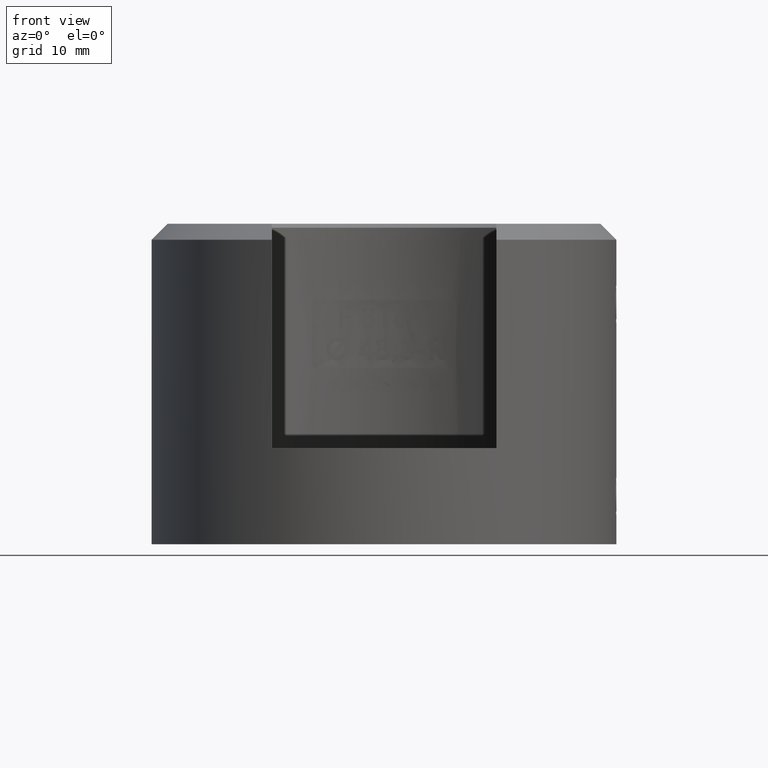
[diagram: clean part render]
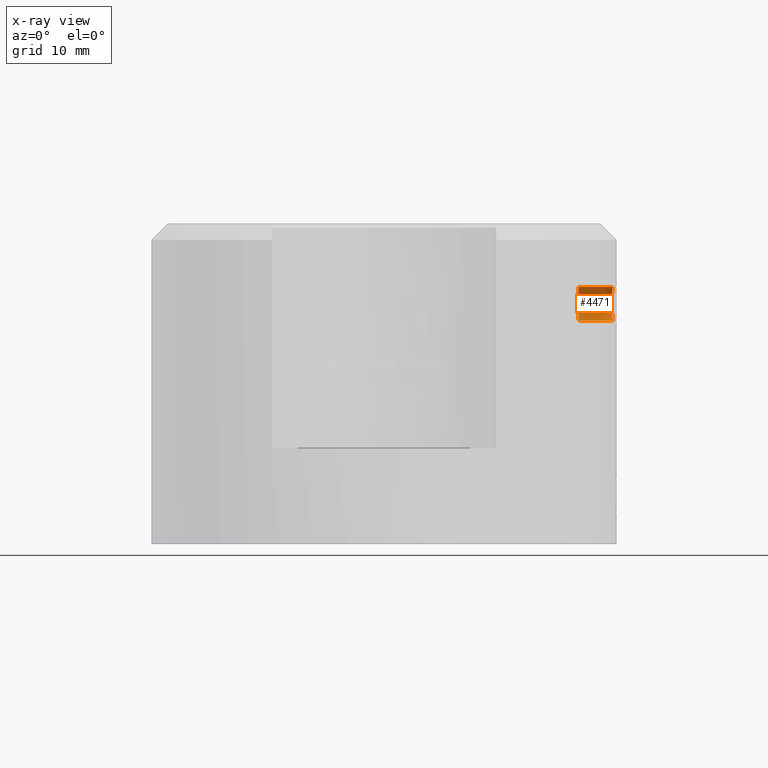
[diagram: x-ray — body ghosted, one internal face saturated and labeled with its STEP entity id]
A machine part, front view, then the same camera in x-ray: the body is ghosted and one INTERNAL B-rep face — a face not visible from any outside direction — is saturated and labeled: STEP entity #4471.
In plain terms, the highlighted cylindrical surface (edge-blend (fillet) strip) has radius 2.1 mm, axis along (1, 0, 0).
Its self-contained STEP definition (entity closure, byte-faithful):
#25 = CARTESIAN_POINT ( 'NONE',  ( 28.43414496619144700, 2.001236919368245500, 10.63736717707338300 ) ) ;
#217 = CARTESIAN_POINT ( 'NONE',  ( 28.42943247418527300, 2.047108871602672400, 10.47294634226725800 ) ) ;
#354 = ORIENTED_EDGE ( 'NONE', *, *, #19311, .T. ) ;
#499 = CARTESIAN_POINT ( 'NONE',  ( 28.53550031830661400, 0.001140642805956739400, 12.09999979347133700 ) ) ;
#808 = CARTESIAN_POINT ( 'NONE',  ( 28.52720066976928200, 0.5739007137693182800, 12.02035187683672700 ) ) ;
#897 = CARTESIAN_POINT ( 'NONE',  ( 28.49944313422719900, 1.194284154135411400, 11.72735281140591600 ) ) ;
#1233 = CARTESIAN_POINT ( 'NONE',  ( 28.49535257245132400, 1.260207332527764100, 8.320067902431606700 ) ) ;
#1321 = CARTESIAN_POINT ( 'NONE',  ( 28.50146884003137900, 1.160278937062588100, 8.249625319063412100 ) ) ;
#1370 = DIRECTION ( 'NONE',  ( 1.000000000000000000, -0.0000000000000000000, -0.0000000000000000000 ) ) ;
#1414 = CARTESIAN_POINT ( 'NONE',  ( 28.47248779039875200, 1.578492023958966800, 8.614843399234125300 ) ) ;
#1526 = CARTESIAN_POINT ( 'NONE',  ( 28.52826814566139600, 0.5388665273112101000, 7.969150172052804000 ) ) ;
#1731 = CARTESIAN_POINT ( 'NONE',  ( 24.26651345816603800, 1.280382146811774900, 8.329834235024446100 ) ) ;
#1928 = CARTESIAN_POINT ( 'NONE',  ( 24.21818700500508500, 1.993039231889467200, 10.67582228837188700 ) ) ;
#1999 = CARTESIAN_POINT ( 'NONE',  ( 28.43218725181276000, 2.020435237145805600, 9.426391447016143800 ) ) ;
#2004 = B_SPLINE_CURVE_WITH_KNOTS ( 'NONE', 3,
 ( #19633, #21774, #26276, #26161, #28408, #15053, #15254, #1731, #6409, #12936, #6306, #28500, #21862, #26353, #13042, #28600, #1928, #2099, #15609, #26712, #13211, #26624, #4369, #2299, #17855, #20092, #11045, #17656, #4542, #24382 ),
 .UNSPECIFIED., .F., .F.,
 ( 4, 2, 2, 2, 2, 2, 2, 2, 2, 2, 2, 2, 2, 2, 4 ),
 ( 4.053914245800869100E-019, 0.0004105386939031072300, 0.0008210773878062141400, 0.001231616081709321000, 0.001642154775612427900, 0.002463232163418641600, 0.003284309551224855300, 0.003694848245127964900, 0.004105386939031075100, 0.004515925632934183000, 0.004926464326837291800, 0.005337003020740401500, 0.005747541714643510300, 0.006158080408546619900, 0.006568619102449728800 ),
 .UNSPECIFIED. ) ;
#2099 = CARTESIAN_POINT ( 'NONE',  ( 24.22661843709207800, 1.887788730975420200, 10.93015850934826200 ) ) ;
#2188 = ORIENTED_EDGE ( 'NONE', *, *, #15767, .F. ) ;
#2288 = CARTESIAN_POINT ( 'NONE',  ( 28.43955553036485300, 1.947112601253244900, 10.78665908532640200 ) ) ;
#2299 = CARTESIAN_POINT ( 'NONE',  ( 24.27741204111290700, 1.053670867048688100, 11.82167147004923500 ) ) ;
#2324 = EDGE_CURVE ( 'NONE', #5622, #17661, #14951, .T. ) ;
#2476 = CARTESIAN_POINT ( 'NONE',  ( 28.43890027084833200, 1.953742816080394700, 10.77004480850141600 ) ) ;
#2766 = CARTESIAN_POINT ( 'NONE',  ( 28.53550033958109100, 3.587027503307923200E-015, 12.09999999847135600 ) ) ;
#2970 = CARTESIAN_POINT ( 'NONE',  ( 28.42742660643852300, 2.066310011845821700, 10.37609331110814100 ) ) ;
#3058 = CARTESIAN_POINT ( 'NONE',  ( 28.51472416335624500, 0.9073754111706852100, 11.89434068395686600 ) ) ;
#3154 = CARTESIAN_POINT ( 'NONE',  ( 28.48209982350005000, 1.453518686007129200, 11.51636031240504100 ) ) ;
#3444 = CARTESIAN_POINT ( 'NONE',  ( 28.50805782832539800, 1.043562618815291800, 11.82365133397179200 ) ) ;
#3468 = CARTESIAN_POINT ( 'NONE',  ( 28.52147816987825400, 0.7451912876890679500, 8.036522827056472800 ) ) ;
#3571 = CARTESIAN_POINT ( 'NONE',  ( 28.49162263918106000, 1.317348555346121300, 8.364575047446358300 ) ) ;
#3678 = CARTESIAN_POINT ( 'NONE',  ( 28.51419415700328800, 0.9199866545642894100, 8.110990648308607800 ) ) ;
#3770 = CARTESIAN_POINT ( 'NONE',  ( 28.53550033772693000, -1.190928323839546300E-015, 7.900000000000007500 ) ) ;
#3938 = VERTEX_POINT ( 'NONE', #4392 ) ;
#3979 = CARTESIAN_POINT ( 'NONE',  ( 28.46920295842066700, 1.618978388605305100, 8.662495600762881100 ) ) ;
#4264 = CARTESIAN_POINT ( 'NONE',  ( 28.42957256996762900, 2.045752201121671100, 9.524572207859959500 ) ) ;
#4361 = CARTESIAN_POINT ( 'NONE',  ( 28.53550020625694500, 0.002281172096754015500, 12.09999876101245200 ) ) ;
#4369 = CARTESIAN_POINT ( 'NONE',  ( 24.26647507438506700, 1.281071884903022300, 11.66959997202008900 ) ) ;
#4392 = CARTESIAN_POINT ( 'NONE',  ( 28.53550020625694500, 0.002281172096754015500, 12.09999876101245200 ) ) ;
#4471 = ADVANCED_FACE ( 'NONE', ( #23815 ), #21366, .F. ) ;
#4542 = CARTESIAN_POINT ( 'NONE',  ( 24.30000000000000800, 0.1370884247201066000, 12.09999999999999400 ) ) ;
#5201 = CARTESIAN_POINT ( 'NONE',  ( 28.45645792054270700, 1.767576466421861600, 11.13391352656541700 ) ) ;
#5312 = CARTESIAN_POINT ( 'NONE',  ( 28.51791409110718000, 0.8342013942232943100, 11.92721815069843100 ) ) ;
#5404 = CARTESIAN_POINT ( 'NONE',  ( 28.49698241895824300, 1.234382896045391500, 11.69899789226991900 ) ) ;
#5499 = CARTESIAN_POINT ( 'NONE',  ( 28.53550020625694500, 0.002281172096754015500, 12.09999876101245200 ) ) ;
#5622 = VERTEX_POINT ( 'NONE', #7500 ) ;
#5707 = CARTESIAN_POINT ( 'NONE',  ( 28.49250184370463400, 1.304422347234177200, 11.64618601421553600 ) ) ;
#5820 = CARTESIAN_POINT ( 'NONE',  ( 28.52051602738778200, 0.7700588735797937500, 8.046262811823007500 ) ) ;
#6011 = CARTESIAN_POINT ( 'NONE',  ( 28.47000405061856300, 1.609194835824802300, 8.650717993261086000 ) ) ;
#6111 = CARTESIAN_POINT ( 'NONE',  ( 28.51986396807981400, 0.7866389366947786900, 8.052879343101606600 ) ) ;
#6204 = CARTESIAN_POINT ( 'NONE',  ( 28.44150007588459800, 1.927319521676156900, 9.166033161876173500 ) ) ;
#6306 = CARTESIAN_POINT ( 'NONE',  ( 24.23082464612010900, 1.835259071340483500, 8.943282772281994800 ) ) ;
#6339 = B_SPLINE_CURVE_WITH_KNOTS ( 'NONE', 3,
 ( #3770, #8260, #25757, #12424, #21663, #19416, #23614, #19031, #1526, #21272, #14641, #3468, #5820, #6111, #23918, #19318, #3678, #19218, #12628, #26144, #28192, #28399, #1321, #21466, #25961, #1233, #16902, #7957, #3571, #19118, #10302, #25860, #12517, #28099, #14754, #1414, #14843, #17078, #6011, #21561, #3979, #26427, #6568, #22132, #24108, #8835, #11035, #21940, #8562, #17384, #10954, #10672, #10763, #26343, #6204, #13029, #28581, #8650, #28691, #1999, #17566, #4264, #6482, #22047, #26520, #15035, #8456, #24567, #13544, #20768, #2970, #217, #27462, #25, #7436, #19998, #2476, #2288, #11229, #25140, #20080, #11806, #18518, #15516, #5201, #6660, #6764, #22313, #21250, #20858, #25334, #12009, #9761, #14521, #21060, #23387, #10171, #3154, #27867, #7631, #23280, #10064, #25422, #18709, #27572, #16766, #5707, #16365, #5404, #14135, #897, #18803, #20962, #19005, #3444, #25734, #3058, #14423, #5312, #16472, #18609, #7530, #7931, #808, #23089, #23180, #18910, #25633, #9867, #5499 ),
 .UNSPECIFIED., .F., .F.,
 ( 4, 2, 2, 2, 2, 1, 1, 2, 2, 2, 1, 1, 2, 2, 2, 1, 1, 2, 2, 2, 2, 2, 1, 2, 2, 2, 1, 2, 2, 2, 1, 1, 2, 2, 2, 2, 2, 2, 2, 2, 2, 2, 1, 1, 2, 2, 2, 1, 1, 2, 2, 2, 1, 1, 2, 2, 2, 2, 2, 1, 2, 2, 2, 1, 2, 2, 2, 1, 1, 2, 2, 2, 2, 2, 4 ),
 ( 0.0000000000000000000, 0.01562500000000045400, 0.02343750000000069700, 0.03125000000000093700, 0.04687500000000152000, 0.05468750000000177600, 0.05859375000000197800, 0.06054687500000200500, 0.06250000000000202600, 0.07812500000000316400, 0.08593750000000366400, 0.08984375000000390000, 0.09179687500000390000, 0.09375000000000391400, 0.1015625000000039400, 0.1054687500000040500, 0.1074218750000041200, 0.1083984375000041400, 0.1093750000000041500, 0.1250000000000034400, 0.1328125000000031900, 0.1367187500000029400, 0.1386718750000026100, 0.1396484375000026400, 0.1406250000000026600, 0.1484375000000017800, 0.1523437500000013600, 0.1542968750000011400, 0.1562500000000009200, 0.1718749999999991700, 0.1796874999999980800, 0.1835937499999977200, 0.1855468749999977200, 0.1874999999999977200, 0.2031249999999975900, 0.2109374999999973400, 0.2187499999999970900, 0.2499999999999960600, 0.2656249999999957300, 0.2734374999999957800, 0.2812499999999958400, 0.2968749999999959500, 0.3046874999999957800, 0.3085937499999958900, 0.3105468749999957800, 0.3124999999999956700, 0.3281249999999937800, 0.3359374999999928400, 0.3398437499999923900, 0.3417968749999922800, 0.3437499999999921700, 0.3515624999999914500, 0.3554687499999912300, 0.3574218749999911200, 0.3583984374999911700, 0.3593749999999911700, 0.3749999999999933900, 0.3828124999999945600, 0.3867187499999952800, 0.3886718749999956100, 0.3896484374999957800, 0.3906249999999960000, 0.3984374999999961100, 0.4023437499999960600, 0.4042968749999961700, 0.4062499999999962800, 0.4218749999999977200, 0.4296874999999983300, 0.4335937499999985600, 0.4355468749999986100, 0.4374999999999986700, 0.4531249999999989500, 0.4609374999999991700, 0.4687499999999993300, 0.5000000000000000000 ),
 .UNSPECIFIED. ) ;
#6361 = ORIENTED_EDGE ( 'NONE', *, *, #8127, .F. ) ;
#6409 = CARTESIAN_POINT ( 'NONE',  ( 24.26049802240634900, 1.388395879715561300, 8.418510654280455100 ) ) ;
#6482 = CARTESIAN_POINT ( 'NONE',  ( 28.42885363871476700, 2.052649806706692300, 9.555207391951213900 ) ) ;
#6568 = CARTESIAN_POINT ( 'NONE',  ( 28.46690934278210200, 1.646889408761925700, 8.696460039141076200 ) ) ;
#6614 = B_SPLINE_CURVE_WITH_KNOTS ( 'NONE', 3,
 ( #4361, #6939, #499, #24846, #2766 ),
 .UNSPECIFIED., .F., .F.,
 ( 4, 1, 4 ),
 ( 0.5000000000000000000, 0.5000872177865775000, 0.5001744355731550000 ),
 .UNSPECIFIED. ) ;
#6660 = CARTESIAN_POINT ( 'NONE',  ( 28.45736010902641100, 1.757466430807474100, 11.14952085451341500 ) ) ;
#6764 = CARTESIAN_POINT ( 'NONE',  ( 28.45790109874914000, 1.751375871714235400, 11.15876726256332100 ) ) ;
#6939 = CARTESIAN_POINT ( 'NONE',  ( 28.53550025101211000, 0.001901005163455587900, 12.09999917397754900 ) ) ;
#6941 = DIRECTION ( 'NONE',  ( 1.000000000000000000, -0.0000000000000000000, -0.0000000000000000000 ) ) ;
#7068 = VERTEX_POINT ( 'NONE', #20791 ) ;
#7136 = DIRECTION ( 'NONE',  ( 0.0000000000000000000, 0.0000000000000000000, -1.000000000000000000 ) ) ;
#7286 = CARTESIAN_POINT ( 'NONE',  ( 28.53550033772693000, -1.190928323839546300E-015, 7.900000000000007500 ) ) ;
#7436 = CARTESIAN_POINT ( 'NONE',  ( 28.43578979651559300, 1.984986734499996500, 10.68702516028511300 ) ) ;
#7500 = CARTESIAN_POINT ( 'NONE',  ( 24.30000000000000100, 1.224108932122638800E-016, 7.900000000000007500 ) ) ;
#7530 = CARTESIAN_POINT ( 'NONE',  ( 28.52180866841100100, 0.7390627999778814900, 11.96696352800251800 ) ) ;
#7631 = CARTESIAN_POINT ( 'NONE',  ( 28.48691941793387300, 1.386104104309541200, 11.57765891976281800 ) ) ;
#7931 = CARTESIAN_POINT ( 'NONE',  ( 28.52416964947891000, 0.6727136648042814100, 11.99052537466774900 ) ) ;
#7957 = CARTESIAN_POINT ( 'NONE',  ( 28.49234806522784100, 1.306449084137414300, 8.355815850374359100 ) ) ;
#8127 = EDGE_CURVE ( 'NONE', #7068, #23015, #20627, .T. ) ;
#8260 = CARTESIAN_POINT ( 'NONE',  ( 28.53550033772693000, 0.06770471605612996000, 7.900000000000009200 ) ) ;
#8456 = CARTESIAN_POINT ( 'NONE',  ( 28.42421291692770400, 2.096780791350887800, 10.13499771409008500 ) ) ;
#8562 = CARTESIAN_POINT ( 'NONE',  ( 28.45885421479035700, 1.740604093027114500, 8.825101766436452200 ) ) ;
#8650 = CARTESIAN_POINT ( 'NONE',  ( 28.43759816784870500, 1.967028921793285700, 9.261105123321220500 ) ) ;
#8835 = CARTESIAN_POINT ( 'NONE',  ( 28.46113982087163700, 1.714535627248978200, 8.787222952181039700 ) ) ;
#9761 = CARTESIAN_POINT ( 'NONE',  ( 28.46780442897033900, 1.635947287632685500, 11.31669996435549700 ) ) ;
#9867 = CARTESIAN_POINT ( 'NONE',  ( 28.53548417055071700, 0.1384944048760541900, 12.09985079624618900 ) ) ;
#10064 = CARTESIAN_POINT ( 'NONE',  ( 28.48887177731739200, 1.357970644464563600, 11.60186351600582100 ) ) ;
#10171 = CARTESIAN_POINT ( 'NONE',  ( 28.47485250911262300, 1.549873911316435300, 11.41991250767671900 ) ) ;
#10302 = CARTESIAN_POINT ( 'NONE',  ( 28.49079334428839200, 1.329728305740596200, 8.374628959639080600 ) ) ;
#10425 = EDGE_CURVE ( 'NONE', #17661, #3938, #6339, .T. ) ;
#10672 = CARTESIAN_POINT ( 'NONE',  ( 28.44681570406124700, 1.872272939481135700, 9.048282024216197400 ) ) ;
#10763 = CARTESIAN_POINT ( 'NONE',  ( 28.44468382867958000, 1.894594101819837100, 9.093162237864389000 ) ) ;
#10783 = VECTOR ( 'NONE', #28679, 1000.000000000000000 ) ;
#10954 = CARTESIAN_POINT ( 'NONE',  ( 28.45133640984449400, 1.824225382184488300, 8.957457906668825100 ) ) ;
#11035 = CARTESIAN_POINT ( 'NONE',  ( 28.45993940498148300, 1.728256496705195400, 8.807023851890935600 ) ) ;
#11045 = CARTESIAN_POINT ( 'NONE',  ( 24.29424812411085800, 0.5455583737688356500, 12.03253739785165000 ) ) ;
#11229 = CARTESIAN_POINT ( 'NONE',  ( 28.43993650142372300, 1.943247675540375400, 10.79614572439636100 ) ) ;
#11806 = CARTESIAN_POINT ( 'NONE',  ( 28.44972804640434900, 1.841328776168567900, 11.01028742237963000 ) ) ;
#12009 = CARTESIAN_POINT ( 'NONE',  ( 28.46707314768053000, 1.644766726801760900, 11.30571641051277300 ) ) ;
#12424 = CARTESIAN_POINT ( 'NONE',  ( 28.53409135051114000, 0.2382882149435047200, 7.913281164077729600 ) ) ;
#12517 = CARTESIAN_POINT ( 'NONE',  ( 28.48472410882385500, 1.418553475726399800, 8.448789401424811300 ) ) ;
#12628 = CARTESIAN_POINT ( 'NONE',  ( 28.50727636519292900, 1.057364842364873600, 8.184987126921500400 ) ) ;
#12936 = CARTESIAN_POINT ( 'NONE',  ( 24.24271371676782700, 1.678827359442208500, 8.709052528206232300 ) ) ;
#13018 = CARTESIAN_POINT ( 'NONE',  ( 29.00000000000000000, 0.0000000000000000000, 7.900000000000007500 ) ) ;
#13029 = CARTESIAN_POINT ( 'NONE',  ( 28.44089651534899600, 1.933480710561628100, 9.180418663212515500 ) ) ;
#13042 = CARTESIAN_POINT ( 'NONE',  ( 24.21028200731834800, 2.086377240685779500, 10.27548664780885400 ) ) ;
#13211 = CARTESIAN_POINT ( 'NONE',  ( 24.24856875427639800, 1.583211223237699100, 11.38660226372657100 ) ) ;
#13544 = CARTESIAN_POINT ( 'NONE',  ( 28.42571133940546000, 2.082635808996181400, 10.27170256979406600 ) ) ;
#14135 = CARTESIAN_POINT ( 'NONE',  ( 28.49824625157554400, 1.214032319719395400, 11.71364639618949400 ) ) ;
#14423 = CARTESIAN_POINT ( 'NONE',  ( 28.51699093467502900, 0.8559664141764308200, 11.91774966905624700 ) ) ;
#14521 = CARTESIAN_POINT ( 'NONE',  ( 28.46829575142543700, 1.630005814538492600, 11.32404809905728600 ) ) ;
#14641 = CARTESIAN_POINT ( 'NONE',  ( 28.52361154372233200, 0.6872054618270382300, 8.015077795244442500 ) ) ;
#14754 = CARTESIAN_POINT ( 'NONE',  ( 28.47521421130657900, 1.544139131137193300, 8.576336466337528100 ) ) ;
#14843 = CARTESIAN_POINT ( 'NONE',  ( 28.47165896349245200, 1.588802089557759700, 8.626715314447352500 ) ) ;
#14951 = LINE ( 'NONE', #13018, #10783 ) ;
#15035 = CARTESIAN_POINT ( 'NONE',  ( 28.42386216590074400, 2.100030691128590200, 10.06679037861780800 ) ) ;
#15053 = CARTESIAN_POINT ( 'NONE',  ( 24.28247160077504700, 0.9315355887506163700, 8.112888629772822200 ) ) ;
#15254 = CARTESIAN_POINT ( 'NONE',  ( 24.27748047868307800, 1.052138519582691600, 8.177409354797115200 ) ) ;
#15516 = CARTESIAN_POINT ( 'NONE',  ( 28.45512071365443800, 1.782500062672938800, 11.11053453688057100 ) ) ;
#15532 = AXIS2_PLACEMENT_3D ( 'NONE', #15796, #6941, #7136 ) ;
#15609 = CARTESIAN_POINT ( 'NONE',  ( 24.23171506080508700, 1.822029961022271200, 11.05305420883221700 ) ) ;
#15736 = VECTOR ( 'NONE', #1370, 1000.000000000000000 ) ;
#15767 = EDGE_CURVE ( 'NONE', #5622, #7068, #2004, .T. ) ;
#15796 = CARTESIAN_POINT ( 'NONE',  ( 29.00000000000000000, 0.0000000000000000000, 10.00000000000000000 ) ) ;
#16365 = CARTESIAN_POINT ( 'NONE',  ( 28.49436548710276200, 1.275817948306288400, 11.66837299508464600 ) ) ;
#16472 = CARTESIAN_POINT ( 'NONE',  ( 28.51851879161967300, 0.8197531534438194900, 11.93340801020490200 ) ) ;
#16766 = CARTESIAN_POINT ( 'NONE',  ( 28.49027134495042900, 1.337465784420278900, 11.61901447494727400 ) ) ;
#16902 = CARTESIAN_POINT ( 'NONE',  ( 28.49400180442281500, 1.281285328388638300, 8.336003796676855900 ) ) ;
#17078 = CARTESIAN_POINT ( 'NONE',  ( 28.47053569322745400, 1.602664534292306500, 8.642974901720407400 ) ) ;
#17384 = CARTESIAN_POINT ( 'NONE',  ( 28.45469282039319800, 1.787649392183350300, 8.895476756328051200 ) ) ;
#17566 = CARTESIAN_POINT ( 'NONE',  ( 28.43125876617280700, 2.029459325481179900, 9.459233414354409700 ) ) ;
#17656 = CARTESIAN_POINT ( 'NONE',  ( 24.29880174661138900, 0.2763322889724646500, 12.08626045328144500 ) ) ;
#17661 = VERTEX_POINT ( 'NONE', #7286 ) ;
#17855 = CARTESIAN_POINT ( 'NONE',  ( 24.28249676271639900, 0.9308862373106381300, 11.88743419484032600 ) ) ;
#17992 = ORIENTED_EDGE ( 'NONE', *, *, #2324, .T. ) ;
#18518 = CARTESIAN_POINT ( 'NONE',  ( 28.45211309510956000, 1.815659400355637000, 11.05624547769547500 ) ) ;
#18609 = CARTESIAN_POINT ( 'NONE',  ( 28.51876972622597300, 0.8136907146289071900, 11.93597211644640800 ) ) ;
#18709 = CARTESIAN_POINT ( 'NONE',  ( 28.48989738463813700, 1.342972262583847600, 11.61444565163782800 ) ) ;
#18803 = CARTESIAN_POINT ( 'NONE',  ( 28.50022617822482100, 1.181257832407322000, 11.73628693172159900 ) ) ;
#18910 = CARTESIAN_POINT ( 'NONE',  ( 28.53052399468283800, 0.4451034708905568000, 12.05258115203513100 ) ) ;
#19005 = CARTESIAN_POINT ( 'NONE',  ( 28.50469416068925800, 1.105729611542714400, 11.78691312048352900 ) ) ;
#19031 = CARTESIAN_POINT ( 'NONE',  ( 28.52994085656629500, 0.4734987002200739500, 7.953021583318268000 ) ) ;
#19118 = CARTESIAN_POINT ( 'NONE',  ( 28.49113531499931500, 1.324639549061589900, 8.370474898392322100 ) ) ;
#19218 = CARTESIAN_POINT ( 'NONE',  ( 28.50966834651980300, 1.011223082864541700, 8.159182024066367900 ) ) ;
#19311 = EDGE_CURVE ( 'NONE', #3938, #23015, #6614, .T. ) ;
#19318 = CARTESIAN_POINT ( 'NONE',  ( 28.51686716109864500, 0.8605701620131563900, 8.083421903921818700 ) ) ;
#19416 = CARTESIAN_POINT ( 'NONE',  ( 28.53259430159436900, 0.3407806201898033700, 7.927547131713850200 ) ) ;
#19633 = CARTESIAN_POINT ( 'NONE',  ( 24.30000000000000100, 1.224108932122638800E-016, 7.900000000000007500 ) ) ;
#19998 = CARTESIAN_POINT ( 'NONE',  ( 28.43793342898484200, 1.963502386572695900, 10.74512635270085100 ) ) ;
#20080 = CARTESIAN_POINT ( 'NONE',  ( 28.44521516239065000, 1.889264205577198000, 10.91944010820961400 ) ) ;
#20092 = CARTESIAN_POINT ( 'NONE',  ( 24.29091541309266900, 0.6764810508237169000, 11.99281971451090600 ) ) ;
#20627 = LINE ( 'NONE', #21515, #15736 ) ;
#20768 = CARTESIAN_POINT ( 'NONE',  ( 28.42677046414247500, 2.072568437931236100, 10.34007979863136800 ) ) ;
#20791 = CARTESIAN_POINT ( 'NONE',  ( 24.30000000000000100, -1.256931523333899200E-023, 12.09999999999999300 ) ) ;
#20858 = CARTESIAN_POINT ( 'NONE',  ( 28.46404682191242900, 1.680723255894712300, 11.25915324009656600 ) ) ;
#20962 = CARTESIAN_POINT ( 'NONE',  ( 28.50052349867698000, 1.176281963017338900, 11.73966943724555300 ) ) ;
#21060 = CARTESIAN_POINT ( 'NONE',  ( 28.46864407982964800, 1.625779032667031800, 11.32922935102721200 ) ) ;
#21250 = CARTESIAN_POINT ( 'NONE',  ( 28.46141822118094200, 1.711409206150214200, 11.21748458261630300 ) ) ;
#21272 = CARTESIAN_POINT ( 'NONE',  ( 28.52524879221658700, 0.6376400762542011600, 7.998851036869841600 ) ) ;
#21366 = CYLINDRICAL_SURFACE ( 'NONE', #15532, 2.099999999999992500 ) ;
#21466 = CARTESIAN_POINT ( 'NONE',  ( 28.49958824170624200, 1.192141024249896000, 8.270913667401105200 ) ) ;
#21515 = CARTESIAN_POINT ( 'NONE',  ( 29.00000000000000000, 2.571758278209431600E-016, 12.09999999999999300 ) ) ;
#21561 = CARTESIAN_POINT ( 'NONE',  ( 28.46951739679509800, 1.615141675848501800, 8.657864981573402100 ) ) ;
#21663 = CARTESIAN_POINT ( 'NONE',  ( 28.53365104200621300, 0.2724606846841866000, 7.917463686351216400 ) ) ;
#21774 = CARTESIAN_POINT ( 'NONE',  ( 24.30000000000000100, 0.1388215403839356000, 7.900000000000005700 ) ) ;
#21862 = CARTESIAN_POINT ( 'NONE',  ( 24.20909779091670100, 2.099900988066279300, 9.725161434812900300 ) ) ;
#21940 = CARTESIAN_POINT ( 'NONE',  ( 28.45915426691390600, 1.737197275970922000, 8.820081260119977200 ) ) ;
#22047 = CARTESIAN_POINT ( 'NONE',  ( 28.42529812701342400, 2.086684702951897100, 9.725894106533852200 ) ) ;
#22132 = CARTESIAN_POINT ( 'NONE',  ( 28.46503628279639400, 1.669155877396345500, 8.725203271676070600 ) ) ;
#22313 = CARTESIAN_POINT ( 'NONE',  ( 28.45978747174054400, 1.730064627048081700, 11.19072271802380500 ) ) ;
#22610 = EDGE_LOOP ( 'NONE', ( #6361, #2188, #17992, #23232, #354 ) ) ;
#23015 = VERTEX_POINT ( 'NONE', #27349 ) ;
#23089 = CARTESIAN_POINT ( 'NONE',  ( 28.52812593464748400, 0.5410802593513502900, 12.02937540779398900 ) ) ;
#23180 = CARTESIAN_POINT ( 'NONE',  ( 28.52980631396672000, 0.4757804820858841400, 12.04566989655830200 ) ) ;
#23232 = ORIENTED_EDGE ( 'NONE', *, *, #10425, .T. ) ;
#23280 = CARTESIAN_POINT ( 'NONE',  ( 28.48774610547062700, 1.374264844929860000, 11.58795469599804100 ) ) ;
#23387 = CARTESIAN_POINT ( 'NONE',  ( 28.47117191937291400, 1.595045451908819500, 11.36671557520132600 ) ) ;
#23614 = CARTESIAN_POINT ( 'NONE',  ( 28.53193963583620600, 0.3767782073927837800, 7.933815449481440600 ) ) ;
#23815 = FACE_OUTER_BOUND ( 'NONE', #22610, .T. ) ;
#23918 = CARTESIAN_POINT ( 'NONE',  ( 28.51948706245056500, 0.7960517921098985200, 8.056713674934490800 ) ) ;
#24108 = CARTESIAN_POINT ( 'NONE',  ( 28.46240836312816600, 1.699858583866610000, 8.766801798066092400 ) ) ;
#24382 = CARTESIAN_POINT ( 'NONE',  ( 24.30000000000000100, -1.256931523333899200E-023, 12.09999999999999300 ) ) ;
#24567 = CARTESIAN_POINT ( 'NONE',  ( 28.42527032375069900, 2.086808834669182200, 10.23750243155287600 ) ) ;
#24846 = CARTESIAN_POINT ( 'NONE',  ( 28.53550034116948500, 0.0003802236908667464700, 12.09999999999999800 ) ) ;
#25140 = CARTESIAN_POINT ( 'NONE',  ( 28.44254952424380900, 1.916683100767453400, 10.86031194410264600 ) ) ;
#25334 = CARTESIAN_POINT ( 'NONE',  ( 28.46540674142090700, 1.664704338138368400, 11.28036818584798500 ) ) ;
#25422 = CARTESIAN_POINT ( 'NONE',  ( 28.48940602337620100, 1.350189378675302100, 11.60843398509723600 ) ) ;
#25633 = CARTESIAN_POINT ( 'NONE',  ( 28.53406135941964200, 0.2747903044920972400, 12.08657471861815900 ) ) ;
#25734 = CARTESIAN_POINT ( 'NONE',  ( 28.51258794855075300, 0.9524227464220588200, 11.87191685016169300 ) ) ;
#25757 = CARTESIAN_POINT ( 'NONE',  ( 28.53514809092297700, 0.1358632452917395400, 7.903276777236926300 ) ) ;
#25860 = CARTESIAN_POINT ( 'NONE',  ( 28.48822781144526300, 1.367788127808430100, 8.405853696818512700 ) ) ;
#25961 = CARTESIAN_POINT ( 'NONE',  ( 28.49796514489497300, 1.218781848723172500, 8.289518109183204000 ) ) ;
#26144 = CARTESIAN_POINT ( 'NONE',  ( 28.50425983716262800, 1.111847799032900100, 8.218317499043847000 ) ) ;
#26161 = CARTESIAN_POINT ( 'NONE',  ( 24.29428519316038400, 0.5438160896944814700, 7.967021740982106700 ) ) ;
#26276 = CARTESIAN_POINT ( 'NONE',  ( 24.29881135623879400, 0.2753101159480041400, 7.913629735376122900 ) ) ;
#26343 = CARTESIAN_POINT ( 'NONE',  ( 28.44242147637673000, 1.917894890792526400, 9.144361238334157700 ) ) ;
#26353 = CARTESIAN_POINT ( 'NONE',  ( 24.20908492561958200, 2.100049300993122700, 10.13628291362906900 ) ) ;
#26427 = CARTESIAN_POINT ( 'NONE',  ( 28.46915278799876200, 1.619591080819956700, 8.663232420551896200 ) ) ;
#26520 = CARTESIAN_POINT ( 'NONE',  ( 28.42387247338493200, 2.099937962049604600, 9.863544919571404900 ) ) ;
#26624 = CARTESIAN_POINT ( 'NONE',  ( 24.26057323010825700, 1.387166520216698100, 11.58271686044830200 ) ) ;
#26712 = CARTESIAN_POINT ( 'NONE',  ( 24.24266682887703800, 1.670003889509360700, 11.28054806806526700 ) ) ;
#27349 = CARTESIAN_POINT ( 'NONE',  ( 28.53550033958109100, 3.587027503307923200E-015, 12.09999999847135600 ) ) ;
#27462 = CARTESIAN_POINT ( 'NONE',  ( 28.43111206412349600, 2.030972773887963700, 10.53841814153863700 ) ) ;
#27572 = CARTESIAN_POINT ( 'NONE',  ( 28.49021542885788300, 1.338287736144792500, 11.61833099069575100 ) ) ;
#27867 = CARTESIAN_POINT ( 'NONE',  ( 28.48421063640693900, 1.424355737509532400, 11.54349595185332000 ) ) ;
#28099 = CARTESIAN_POINT ( 'NONE',  ( 28.47735174549699300, 1.516681690583010900, 8.546791921090758100 ) ) ;
#28192 = CARTESIAN_POINT ( 'NONE',  ( 28.50291863590344100, 1.135305358196629000, 8.233316990878599000 ) ) ;
#28399 = CARTESIAN_POINT ( 'NONE',  ( 28.50201374539021900, 1.150964042449485600, 8.243478185715714400 ) ) ;
#28408 = CARTESIAN_POINT ( 'NONE',  ( 24.29089429005067700, 0.6772297875455953700, 8.007436903982561900 ) ) ;
#28500 = CARTESIAN_POINT ( 'NONE',  ( 24.21404874422160700, 2.044720592750812700, 9.448688059376250300 ) ) ;
#28581 = CARTESIAN_POINT ( 'NONE',  ( 28.44064787033384100, 1.936014427853374900, 9.186409874891504400 ) ) ;
#28600 = CARTESIAN_POINT ( 'NONE',  ( 24.21484578624616500, 2.032724381870506300, 10.54488023539281700 ) ) ;
#28679 = DIRECTION ( 'NONE',  ( 1.000000000000000000, -0.0000000000000000000, -0.0000000000000000000 ) ) ;
#28691 = CARTESIAN_POINT ( 'NONE',  ( 28.43522887134467300, 1.990602005530113500, 9.327508413579593600 ) ) ;